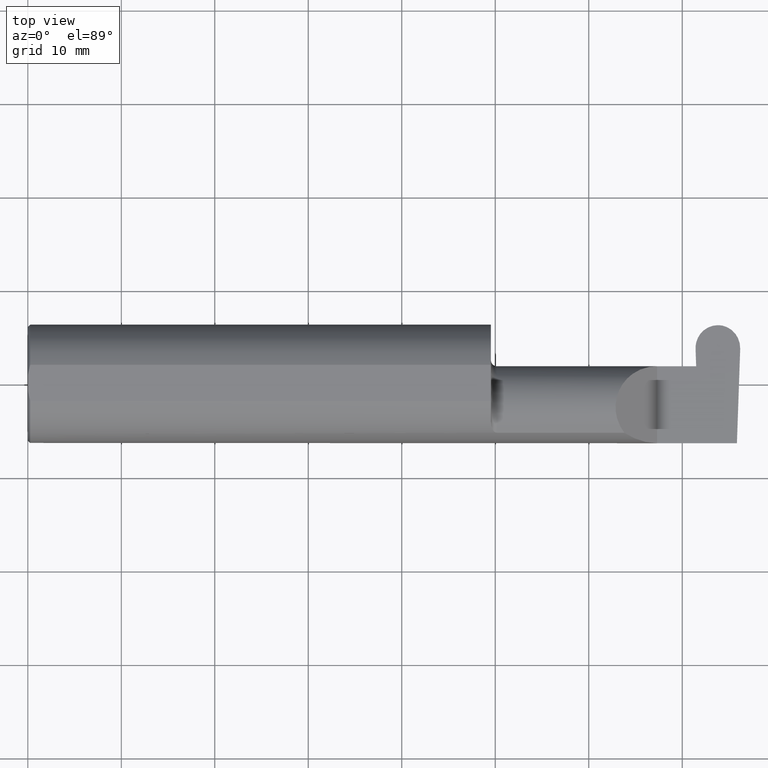
[diagram: clean part render]
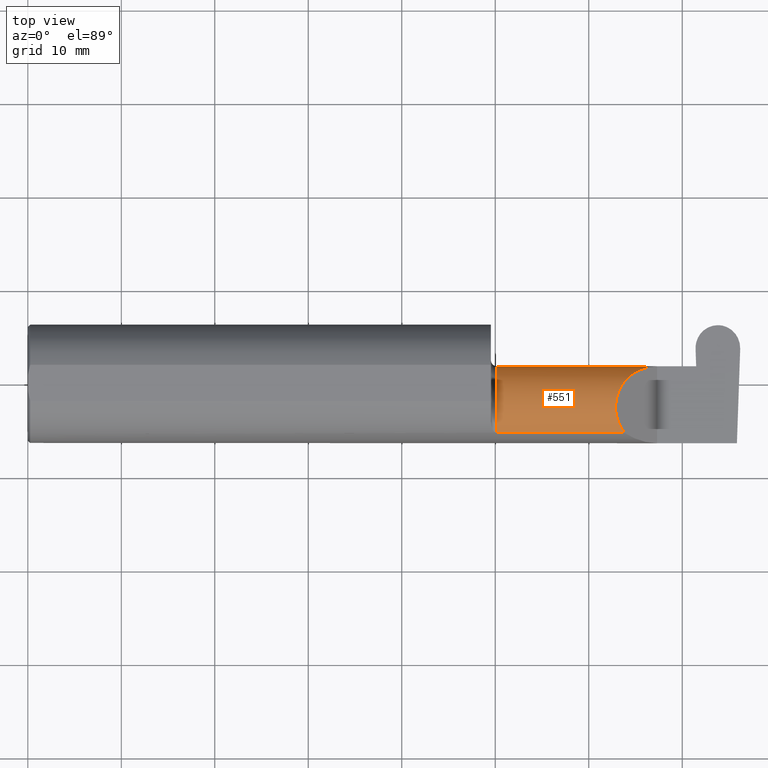
[diagram: same view with one face highlighted and labeled with its STEP entity id]
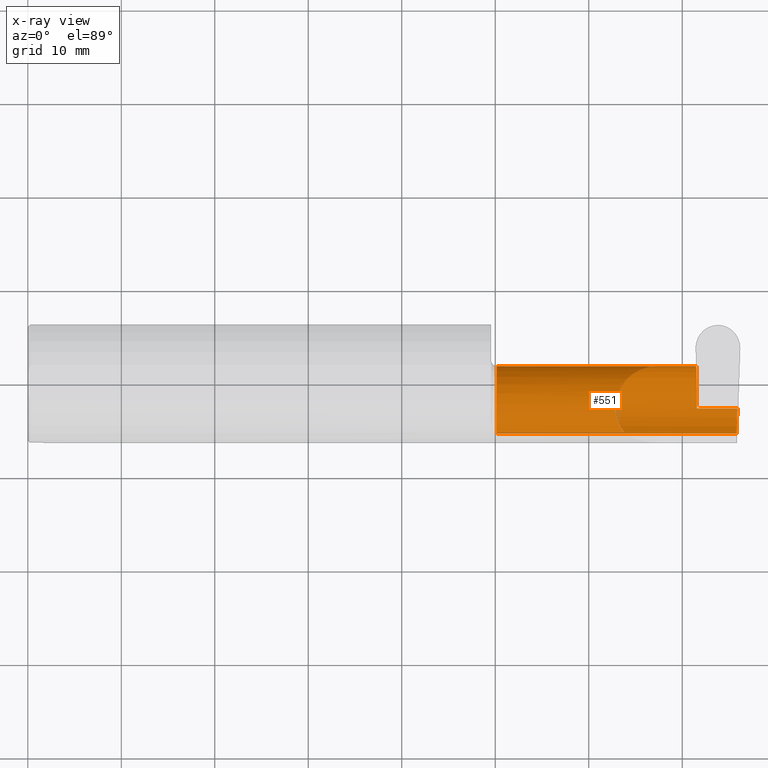
[diagram: x-ray of the same camera — body ghosted, the highlighted face saturated]
A machine part, top view. The second image highlights one B-rep face of the part: STEP entity #551.
The next image is the same camera in x-ray: the body ghosted, the highlighted face saturated — about 1% of this face is hidden behind the body in this view.
In plain terms, the highlighted cylindrical surface (partial cylindrical patch) has radius 4.445 mm, axis along (-1, -0, -0).
Its self-contained STEP definition (entity closure, byte-faithful):
#9 = LINE ( 'NONE', #447, #463 ) ;
#24 = CARTESIAN_POINT ( 'NONE',  ( 2.988136526189751230, -0.1008500000000000785, -0.1750000000000000722 ) ) ;
#36 = DIRECTION ( 'NONE',  ( 0.000000000000000000, -1.000000000000000000, 0.000000000000000000 ) ) ;
#56 = VERTEX_POINT ( 'NONE', #512 ) ;
#60 = CARTESIAN_POINT ( 'NONE',  ( 2.803339167728504666, 0.07414999999999977165, 0.000000000000000000 ) ) ;
#65 = EDGE_CURVE ( 'NONE', #253, #423, #337, .T. ) ;
#71 = DIRECTION ( 'NONE',  ( -1.000000000000000000, -1.981473217010842137E-17, -0.000000000000000000 ) ) ;
#82 = FACE_OUTER_BOUND ( 'NONE', #465, .T. ) ;
#85 = DIRECTION ( 'NONE',  ( -1.000000000000000000, -1.981473217010842137E-17, -0.000000000000000000 ) ) ;
#91 = ORIENTED_EDGE ( 'NONE', *, *, #497, .F. ) ;
#98 = CARTESIAN_POINT ( 'NONE',  ( 1.950000000000000178, -0.1008500000000000368, 0.000000000000000000 ) ) ;
#99 = AXIS2_PLACEMENT_3D ( 'NONE', #677, #71, #663 ) ;
#120 = EDGE_CURVE ( 'NONE', #363, #56, #523, .T. ) ;
#122 = DIRECTION ( 'NONE',  ( 1.000000000000000000, 1.981473217010842137E-17, 0.000000000000000000 ) ) ;
#124 = CARTESIAN_POINT ( 'NONE',  ( 2.817597862438286249, -0.1008500000000000368, -0.1750000000000000444 ) ) ;
#133 = CARTESIAN_POINT ( 'NONE',  ( 2.803232562456845933, 0.07404339472834127467, -0.006107411922952280664 ) ) ;
#138 = DIRECTION ( 'NONE',  ( 1.000000000000000000, 1.981473217010842137E-17, 0.000000000000000000 ) ) ;
#141 = EDGE_CURVE ( 'NONE', #265, #687, #355, .T. ) ;
#142 = ORIENTED_EDGE ( 'NONE', *, *, #444, .T. ) ;
#143 = CYLINDRICAL_SURFACE ( 'NONE', #229, 0.1750000000000000444 ) ;
#144 = EDGE_CURVE ( 'NONE', #393, #533, #498, .T. ) ;
#150 = CARTESIAN_POINT ( 'NONE',  ( 2.816292363343102068, 0.07056399972053260805, -0.1057442486376092144 ) ) ;
#165 = EDGE_CURVE ( 'NONE', #533, #525, #646, .T. ) ;
#194 = CARTESIAN_POINT ( 'NONE',  ( 2.817597862438286249, -0.1008500000000000368, -0.1750000000000000444 ) ) ;
#222 = EDGE_CURVE ( 'NONE', #525, #423, #442, .T. ) ;
#225 = LINE ( 'NONE', #432, #529 ) ;
#229 = AXIS2_PLACEMENT_3D ( 'NONE', #98, #697, #36 ) ;
#240 = CARTESIAN_POINT ( 'NONE',  ( 2.482823929317965028, 0.07415000000000000757, 0.1671760706820337172 ) ) ;
#252 = CARTESIAN_POINT ( 'NONE',  ( 2.393342309999999973, -0.2080850024789289987, 0.1382955322609668025 ) ) ;
#253 = VERTEX_POINT ( 'NONE', #443 ) ;
#265 = VERTEX_POINT ( 'NONE', #279 ) ;
#279 = CARTESIAN_POINT ( 'NONE',  ( 1.975000000000000089, -0.2080850024789290820, 0.1382955322609667193 ) ) ;
#285 = CARTESIAN_POINT ( 'NONE',  ( 1.975000000000000089, -0.2080850024789290820, -0.1382955322609666915 ) ) ;
#290 = CARTESIAN_POINT ( 'NONE',  ( 2.985032866776429650, -0.2080850024789289987, -0.1382955322609668025 ) ) ;
#304 = CARTESIAN_POINT ( 'NONE',  ( 2.409263745716142768, -0.07597241004310673063, 0.2407362542838552832 ) ) ;
#305 = CARTESIAN_POINT ( 'NONE',  ( 2.803303632637951459, 0.07411446490944693932, -0.002035803974317428044 ) ) ;
#307 = CARTESIAN_POINT ( 'NONE',  ( 2.814490853840988738, 0.07404339472834124691, -0.006107411922953761250 ) ) ;
#312 = ORIENTED_EDGE ( 'NONE', *, *, #120, .F. ) ;
#319 = ORIENTED_EDGE ( 'NONE', *, *, #327, .F. ) ;
#326 = ORIENTED_EDGE ( 'NONE', *, *, #65, .T. ) ;
#327 = EDGE_CURVE ( 'NONE', #56, #393, #9, .T. ) ;
#337 = LINE ( 'NONE', #556, #404 ) ;
#338 = CARTESIAN_POINT ( 'NONE',  ( 2.511704467739031887, -0.2080850024789288877, 0.1382955322609669413 ) ) ;
#353 = CARTESIAN_POINT ( 'NONE',  ( 2.985694921565461790, -0.1771157075472508668, -0.1623092683844332140 ) ) ;
#355 = LINE ( 'NONE', #252, #415 ) ;
#363 = VERTEX_POINT ( 'NONE', #290 ) ;
#393 = VERTEX_POINT ( 'NONE', #124 ) ;
#404 = VECTOR ( 'NONE', #122, 39.37007874015748143 ) ;
#415 = VECTOR ( 'NONE', #138, 39.37007874015748143 ) ;
#418 = ORIENTED_EDGE ( 'NONE', *, *, #222, .F. ) ;
#423 = VERTEX_POINT ( 'NONE', #60 ) ;
#427 = VERTEX_POINT ( 'NONE', #285 ) ;
#431 = EDGE_CURVE ( 'NONE', #363, #427, #225, .T. ) ;
#432 = CARTESIAN_POINT ( 'NONE',  ( 2.393342309999999973, -0.2080850024789289987, -0.1382955322609668025 ) ) ;
#442 = B_SPLINE_CURVE_WITH_KNOTS ( 'NONE', 3,
 ( #625, #630, #305, #515 ),
 .UNSPECIFIED., .F., .F.,
 ( 4, 4 ),
 ( 0.000000000000000000, 1.000000000000000000 ),
 .UNSPECIFIED. ) ;
#443 = CARTESIAN_POINT ( 'NONE',  ( 2.650000000000000355, 0.07414999999999999369, 1.285879139104719253E-16 ) ) ;
#444 = EDGE_CURVE ( 'NONE', #687, #253, #695, .T. ) ;
#447 = CARTESIAN_POINT ( 'NONE',  ( 3.402190948718818664, -0.1008500000000000785, -0.1750000000000000722 ) ) ;
#462 = CARTESIAN_POINT ( 'NONE',  ( 2.511704467739031887, -0.2080850024789288877, 0.1382955322609669413 ) ) ;
#463 = VECTOR ( 'NONE', #709, 39.37007874015748143 ) ;
#465 = EDGE_LOOP ( 'NONE', ( #597, #91, #521, #142, #326, #418, #483, #696, #319, #312 ) ) ;
#470 = CARTESIAN_POINT ( 'NONE',  ( 2.986768025497130274, -0.1400387324517230192, -0.1750000000000001277 ) ) ;
#483 = ORIENTED_EDGE ( 'NONE', *, *, #165, .F. ) ;
#497 = EDGE_CURVE ( 'NONE', #265, #427, #642, .T. ) ;
#498 =( BOUNDED_CURVE ( )  B_SPLINE_CURVE ( 3, ( #194, #683, #150, #307 ),
 .UNSPECIFIED., .F., .T. ) 
 B_SPLINE_CURVE_WITH_KNOTS ( ( 4, 4 ),
 ( 3.159045946109735326, 4.694935687864653318 ),
 .UNSPECIFIED. ) 
 CURVE ( )  GEOMETRIC_REPRESENTATION_ITEM ( )  RATIONAL_B_SPLINE_CURVE ( ( 1.000000000000000000, 0.8128932002257887035, 0.8128932002257887035, 1.000000000000000000 ) ) 
 REPRESENTATION_ITEM ( '' )  );
#502 = DIRECTION ( 'NONE',  ( -1.000000000000000000, -1.981473217010842137E-17, -0.000000000000000000 ) ) ;
#512 = CARTESIAN_POINT ( 'NONE',  ( 2.988136526189751230, -0.1008500000000000785, -0.1750000000000000722 ) ) ;
#515 = CARTESIAN_POINT ( 'NONE',  ( 2.803339167728504666, 0.07414999999999977165, 0.000000000000000000 ) ) ;
#521 = ORIENTED_EDGE ( 'NONE', *, *, #141, .T. ) ;
#523 =( BOUNDED_CURVE ( )  B_SPLINE_CURVE ( 3, ( #627, #353, #470, #24 ),
 .UNSPECIFIED., .F., .T. ) 
 B_SPLINE_CURVE_WITH_KNOTS ( ( 4, 4 ),
 ( 0.4474640105399658729, 1.107026853503871866 ),
 .UNSPECIFIED. ) 
 CURVE ( )  GEOMETRIC_REPRESENTATION_ITEM ( )  RATIONAL_B_SPLINE_CURVE ( ( 1.000000000000000000, 0.9640754331822831702, 0.9640754331822831702, 1.000000000000000000 ) ) 
 REPRESENTATION_ITEM ( '' )  );
#525 = VERTEX_POINT ( 'NONE', #133 ) ;
#529 = VECTOR ( 'NONE', #502, 39.37007874015748143 ) ;
#533 = VERTEX_POINT ( 'NONE', #618 ) ;
#551 = ADVANCED_FACE ( 'NONE', ( #82 ), #143, .T. ) ;
#556 = CARTESIAN_POINT ( 'NONE',  ( 1.950000000000000178, 0.07414999999999997982, 1.285879139104719253E-16 ) ) ;
#565 = CARTESIAN_POINT ( 'NONE',  ( 2.650000000000000355, 0.07414999999999999369, 1.285879139104719253E-16 ) ) ;
#575 = CARTESIAN_POINT ( 'NONE',  ( 1.950000000000000178, 0.07404339472834131630, -0.006107411922950325631 ) ) ;
#582 = VECTOR ( 'NONE', #85, 39.37007874015748143 ) ;
#597 = ORIENTED_EDGE ( 'NONE', *, *, #431, .T. ) ;
#618 = CARTESIAN_POINT ( 'NONE',  ( 2.814490853840988738, 0.07404339472834124691, -0.006107411922953761250 ) ) ;
#625 = CARTESIAN_POINT ( 'NONE',  ( 2.803232562456845933, 0.07404339472834127467, -0.006107411922952280664 ) ) ;
#627 = CARTESIAN_POINT ( 'NONE',  ( 2.985032866776429650, -0.2080850024789289987, -0.1382955322609668025 ) ) ;
#630 = CARTESIAN_POINT ( 'NONE',  ( 2.803268097547399140, 0.07407892981889410700, -0.004071607948634856089 ) ) ;
#642 = CIRCLE ( 'NONE', #99, 0.1750000000000000167 ) ;
#646 = LINE ( 'NONE', #575, #582 ) ;
#663 = DIRECTION ( 'NONE',  ( 0.000000000000000000, -1.000000000000000000, 0.000000000000000000 ) ) ;
#677 = CARTESIAN_POINT ( 'NONE',  ( 1.975000000000000089, -0.1008500000000000368, 0.000000000000000000 ) ) ;
#683 = CARTESIAN_POINT ( 'NONE',  ( 2.817566416972957732, -0.001152430219572253686, -0.1750000000000000722 ) ) ;
#687 = VERTEX_POINT ( 'NONE', #338 ) ;
#695 =( BOUNDED_CURVE ( )  B_SPLINE_CURVE ( 3, ( #462, #304, #240, #565 ),
 .UNSPECIFIED., .F., .F. ) 
 B_SPLINE_CURVE_WITH_KNOTS ( ( 4, 4 ),
 ( 5.623622464215682015, 7.853981633974482790 ),
 .UNSPECIFIED. ) 
 CURVE ( )  GEOMETRIC_REPRESENTATION_ITEM ( )  RATIONAL_B_SPLINE_CURVE ( ( 1.000000000000000000, 0.6266774836123999437, 0.6266774836123999437, 1.000000000000000000 ) ) 
 REPRESENTATION_ITEM ( '' )  );
#696 = ORIENTED_EDGE ( 'NONE', *, *, #144, .F. ) ;
#697 = DIRECTION ( 'NONE',  ( -1.000000000000000000, -1.981473217010842137E-17, -0.000000000000000000 ) ) ;
#709 = DIRECTION ( 'NONE',  ( -1.000000000000000000, -0.000000000000000000, -0.000000000000000000 ) ) ;